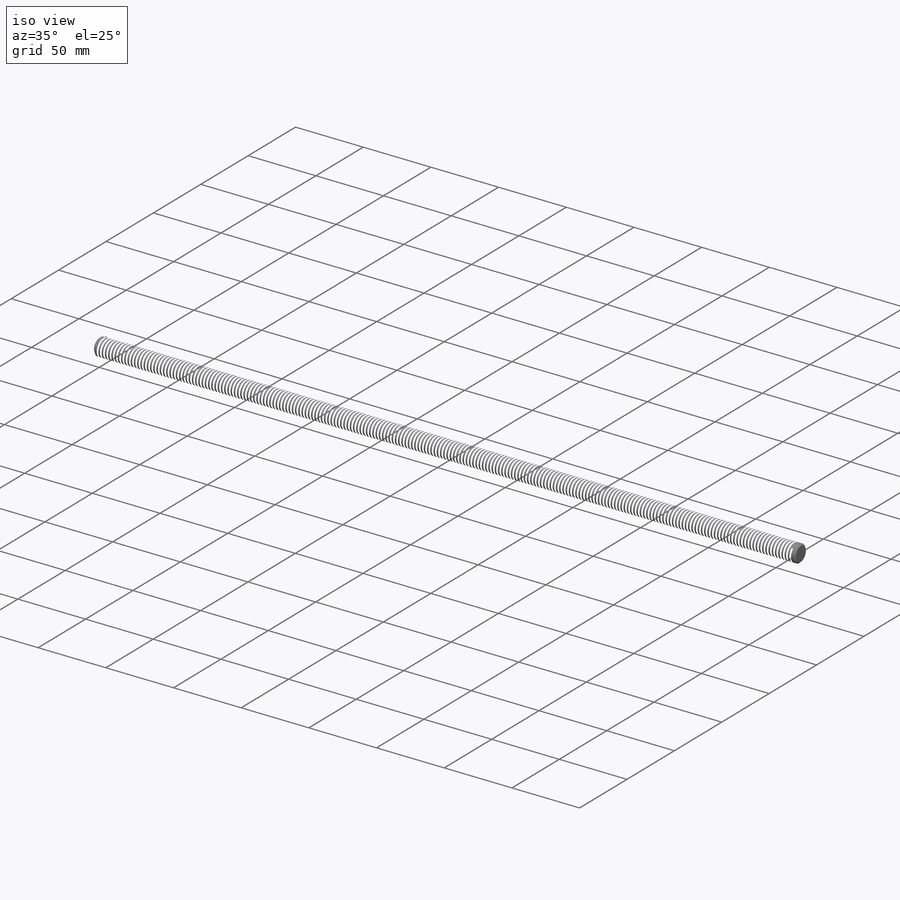
[diagram: iso view]
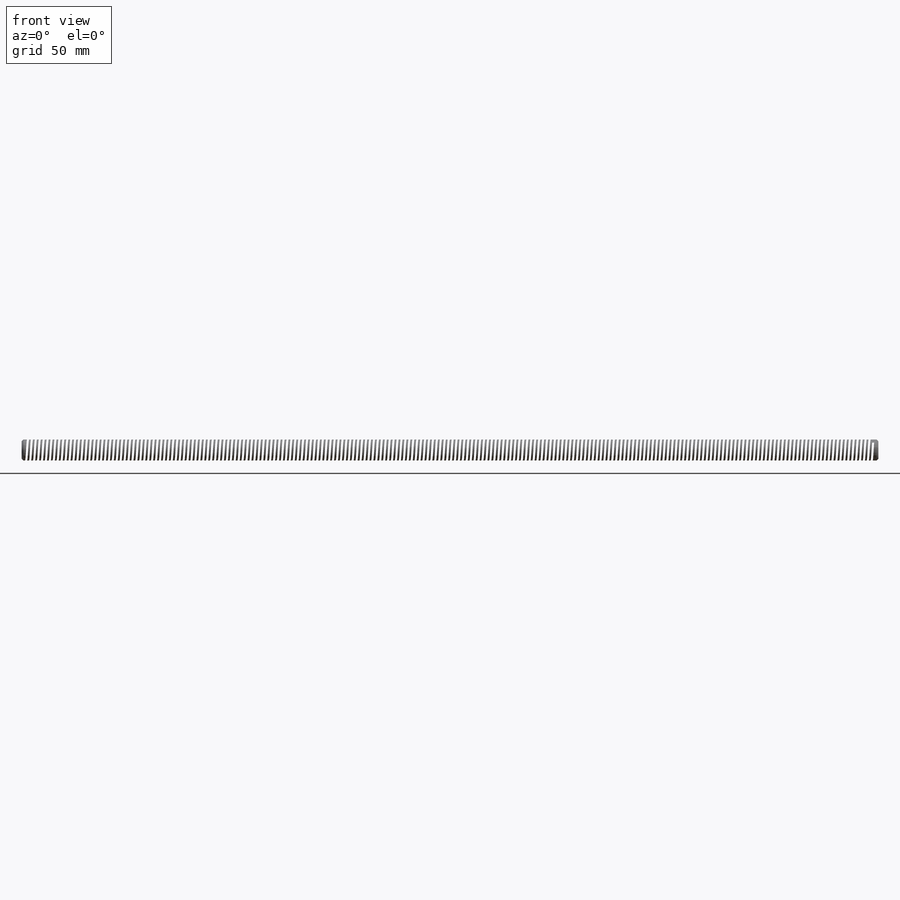
[diagram: front view]
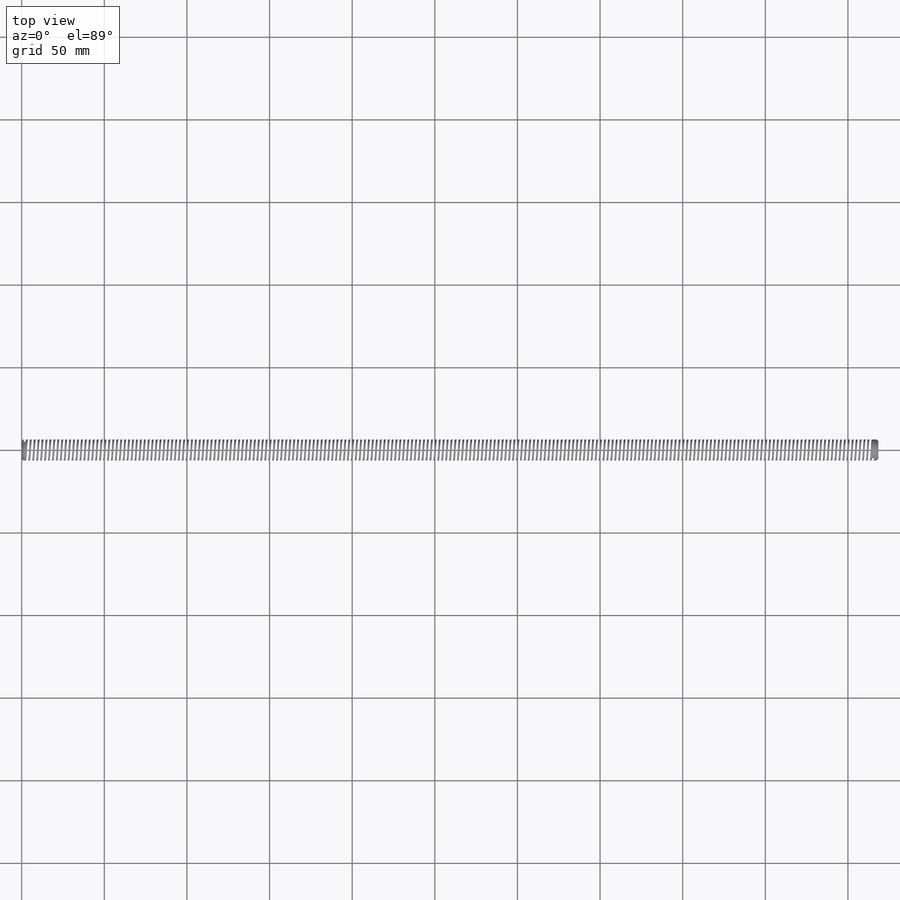
[diagram: top view]
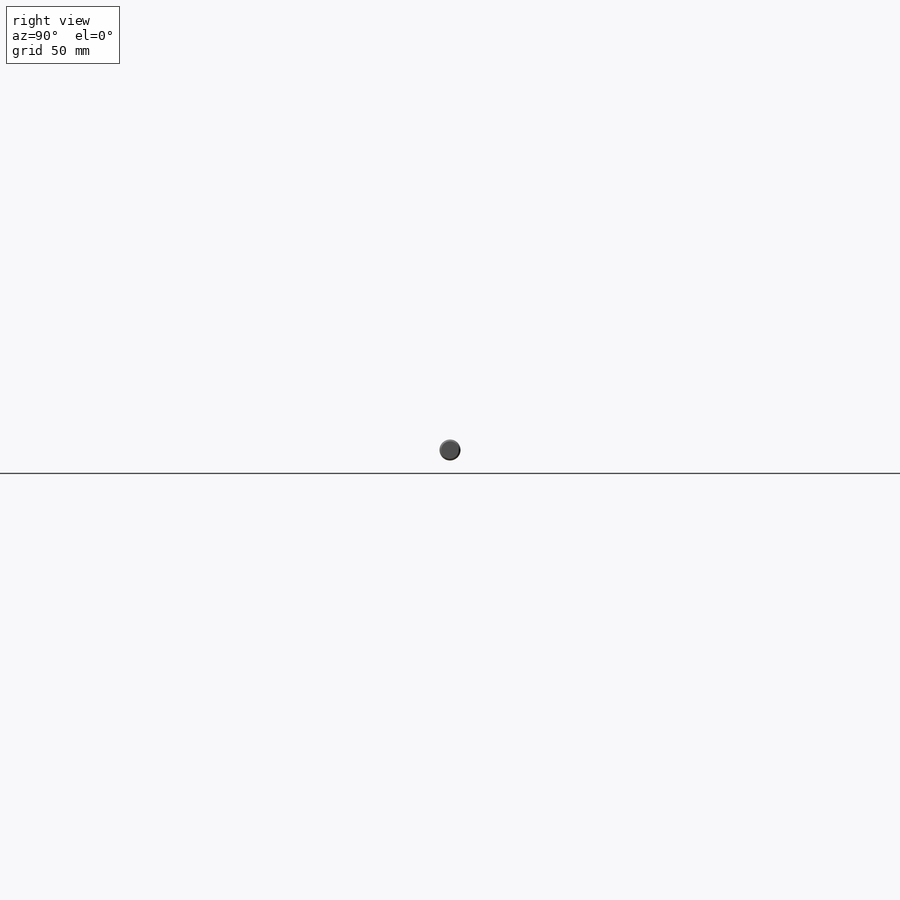
[diagram: right view]
SOLIDWORKS PART (.sldprt)
format: sldprt  version: not decoded by parser v0  size: 2,987,520 bytes
history: native  units: mm
features: sketch x3, material x1, extrude x1, thread x1, chamfer x1, plane x1, helix x1, sweep x1 (+11 scaffold rows collapsed)
feature tree (21):
  scaffold x11  (default folders/planes/origin — collapsed)
  material  "Fast travel rod"
  sketch  "Sketch1"  dims[D1=12.7mm]
  extrude  "Boss-Extrude1"  [1 undecoded]
  thread  "Cosmetic Thread1"  Diameter=11.7mm  [1 undecoded]
  chamfer  "Chamfer1"  Distance=1.016mm Angle=45deg
  plane  "Plane1"  Offset=2.54mm
  sketch  "Sketch2"  dims[D1=1.0mm]
  helix  "Helix/Spiral1"  Pitch=513.485mm
  sketch  "Sketch3"  dims[c1.D1=1.0mm c1.D2=0.508mm c1.D3=1.016mm c2.D1=1.524mm c2.D2=1.016mm c2.D3=1.778mm]
  sweep  "Sweep1"
decode coverage: 6 of 8 modeling features carry decoded parameters
note: 2 parameter values undecoded
note: suppression state not decoded; provenance and decode notes live in map.json
